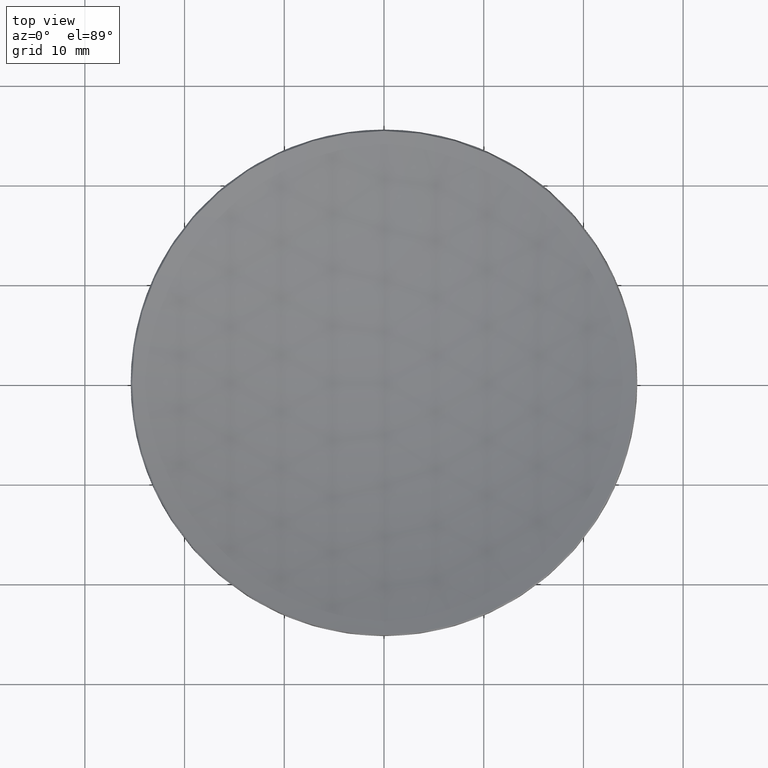
[diagram: clean part render]
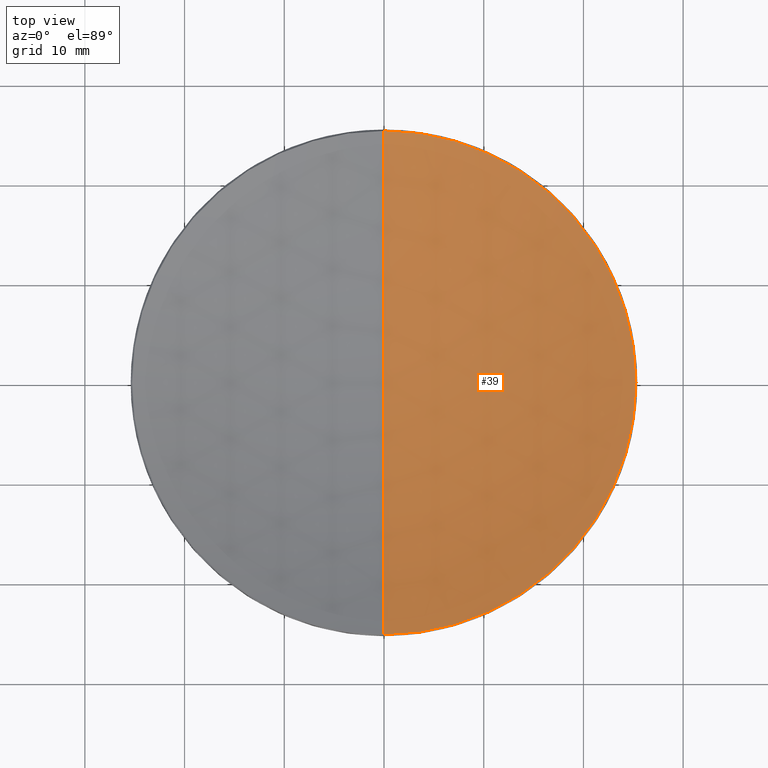
[diagram: same view with one face highlighted and labeled with its STEP entity id]
A machine part, top view. The second image highlights one B-rep face of the part: STEP entity #39.
In plain terms, the highlighted spherical surface has radius 65.8 mm.
Its self-contained STEP definition (entity closure, byte-faithful):
#14 = VERTEX_POINT ( 'NONE', #263 ) ;
#22 = AXIS2_PLACEMENT_3D ( 'NONE', #24, #178, #247 ) ;
#24 = CARTESIAN_POINT ( 'NONE',  ( 0.000000000000000000, 0.000000000000000000, 77.79991762762121255 ) ) ;
#39 = ADVANCED_FACE ( 'NONE', ( #196 ), #165, .F. ) ;
#53 = CARTESIAN_POINT ( 'NONE',  ( 25.25886542154865921, 3.101960869346804496E-15, 17.04113457845134860 ) ) ;
#72 = CARTESIAN_POINT ( 'NONE',  ( 0.000000000000000000, 0.000000000000000000, 17.04113457845134860 ) ) ;
#78 = AXIS2_PLACEMENT_3D ( 'NONE', #117, #190, #192 ) ;
#88 = DIRECTION ( 'NONE',  ( 1.000000000000000000, 0.000000000000000000, 0.000000000000000000 ) ) ;
#90 = CARTESIAN_POINT ( 'NONE',  ( 0.000000000000000000, 0.000000000000000000, 77.79991762762121255 ) ) ;
#96 = EDGE_LOOP ( 'NONE', ( #163, #183, #133, #186 ) ) ;
#98 = EDGE_CURVE ( 'NONE', #131, #209, #195, .T. ) ;
#102 = CIRCLE ( 'NONE', #158, 25.25886542154865921 ) ;
#107 = DIRECTION ( 'NONE',  ( -0.000000000000000000, -0.000000000000000000, 1.000000000000000000 ) ) ;
#115 = VERTEX_POINT ( 'NONE', #171 ) ;
#117 = CARTESIAN_POINT ( 'NONE',  ( 0.000000000000000000, 0.000000000000000000, 77.79991762762121255 ) ) ;
#131 = VERTEX_POINT ( 'NONE', #179 ) ;
#133 = ORIENTED_EDGE ( 'NONE', *, *, #98, .T. ) ;
#144 = DIRECTION ( 'NONE',  ( 0.000000000000000000, 0.000000000000000000, -1.000000000000000000 ) ) ;
#146 = DIRECTION ( 'NONE',  ( -0.000000000000000000, -0.000000000000000000, 1.000000000000000000 ) ) ;
#148 = AXIS2_PLACEMENT_3D ( 'NONE', #267, #107, #200 ) ;
#158 = AXIS2_PLACEMENT_3D ( 'NONE', #72, #146, #88 ) ;
#162 = EDGE_CURVE ( 'NONE', #14, #131, #189, .T. ) ;
#163 = ORIENTED_EDGE ( 'NONE', *, *, #242, .F. ) ;
#165 = SPHERICAL_SURFACE ( 'NONE', #78, 65.79999999999999716 ) ;
#171 = CARTESIAN_POINT ( 'NONE',  ( 0.000000000000000000, 25.25886542154867698, 17.04113457845135216 ) ) ;
#176 = AXIS2_PLACEMENT_3D ( 'NONE', #90, #270, #144 ) ;
#178 = DIRECTION ( 'NONE',  ( -1.000000000000000000, 1.224646799147353207E-16, 0.000000000000000000 ) ) ;
#179 = CARTESIAN_POINT ( 'NONE',  ( -3.093318868859335282E-15, -25.25886542154867698, 17.04113457845135216 ) ) ;
#183 = ORIENTED_EDGE ( 'NONE', *, *, #162, .T. ) ;
#186 = ORIENTED_EDGE ( 'NONE', *, *, #277, .T. ) ;
#189 = CIRCLE ( 'NONE', #22, 65.79999999999999716 ) ;
#190 = DIRECTION ( 'NONE',  ( -1.000000000000000000, 0.000000000000000000, 0.000000000000000000 ) ) ;
#192 = DIRECTION ( 'NONE',  ( 0.000000000000000000, 1.000000000000000000, 0.000000000000000000 ) ) ;
#195 = CIRCLE ( 'NONE', #148, 25.25886542154865921 ) ;
#196 = FACE_OUTER_BOUND ( 'NONE', #96, .T. ) ;
#200 = DIRECTION ( 'NONE',  ( 1.000000000000000000, 0.000000000000000000, 0.000000000000000000 ) ) ;
#209 = VERTEX_POINT ( 'NONE', #53 ) ;
#242 = EDGE_CURVE ( 'NONE', #14, #115, #256, .T. ) ;
#247 = DIRECTION ( 'NONE',  ( -1.224646799147353207E-16, -1.000000000000000000, 0.000000000000000000 ) ) ;
#256 = CIRCLE ( 'NONE', #176, 65.79999999999999716 ) ;
#263 = CARTESIAN_POINT ( 'NONE',  ( 0.000000000000000000, 4.029087969194792054E-15, 11.99991762762121716 ) ) ;
#267 = CARTESIAN_POINT ( 'NONE',  ( 0.000000000000000000, 0.000000000000000000, 17.04113457845134860 ) ) ;
#270 = DIRECTION ( 'NONE',  ( 1.000000000000000000, 0.000000000000000000, 0.000000000000000000 ) ) ;
#277 = EDGE_CURVE ( 'NONE', #209, #115, #102, .T. ) ;